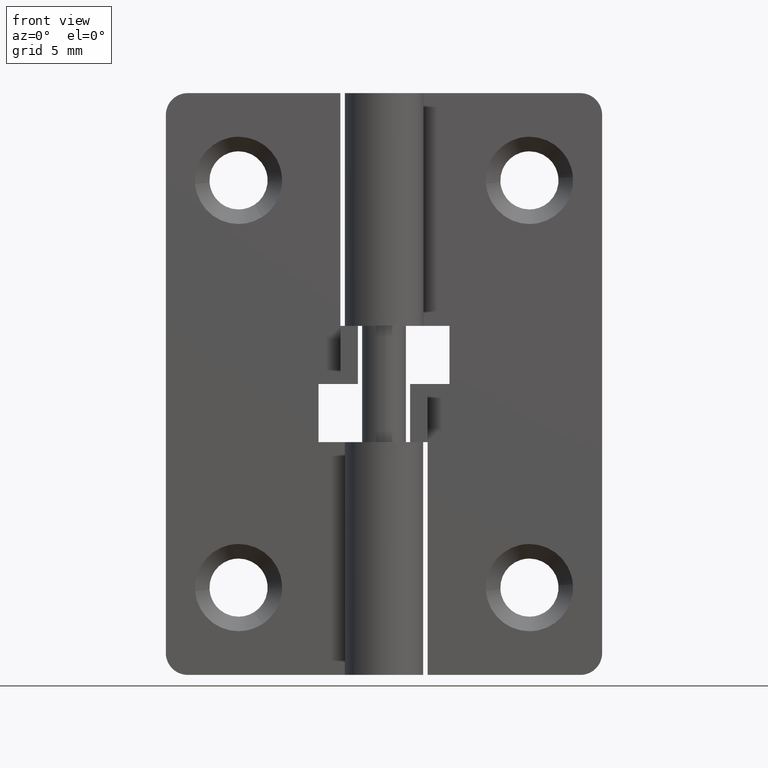
[diagram: clean part render]
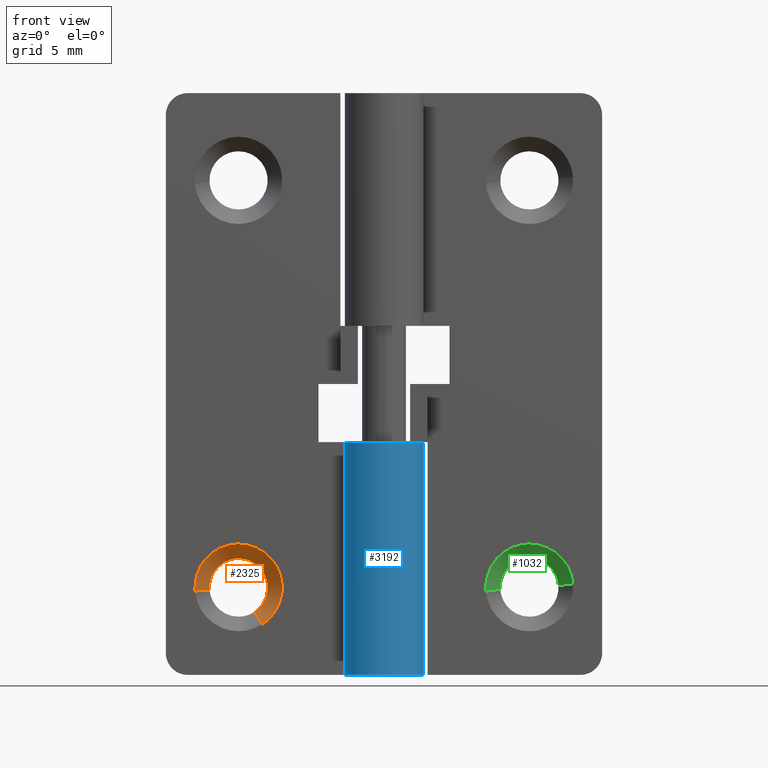
[diagram: same view with three faces highlighted in distinct colors, each labeled with its STEP entity id]
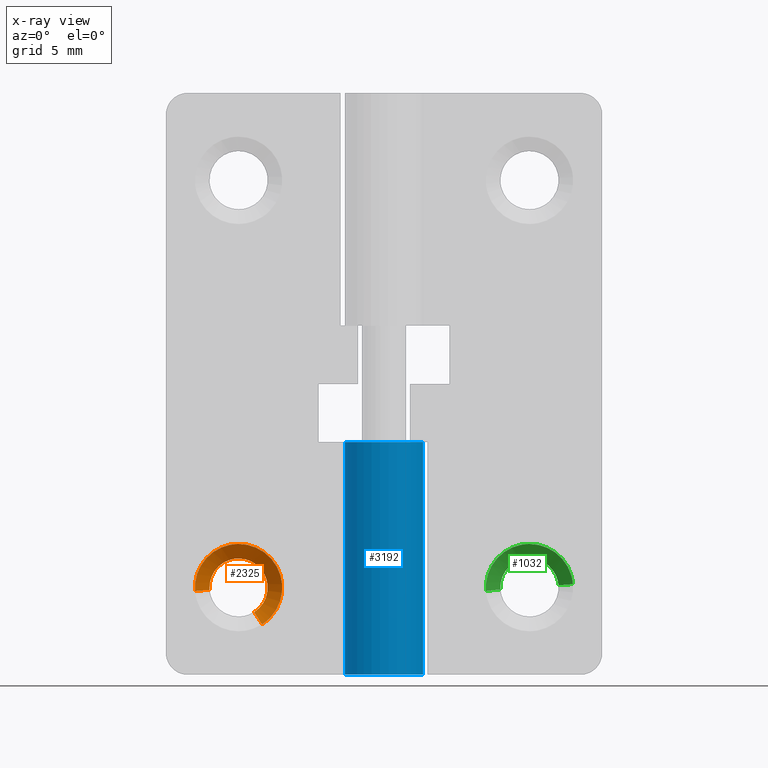
[diagram: x-ray of the same camera — body ghosted, the three highlighted faces saturated]
A machine part, front view with three faces highlighted in distinct colors.
The next image is the same camera in x-ray (body ghosted, the three faces saturated) — at least one of them is partly hidden behind the body in this view.
Their STEP definitions:

[orange] entity #2325 — the highlighted face is a freeform B-spline surface patch.
#2189=CARTESIAN_POINT('',(-8.937736682943745,2.524999999999999,4.334980903492811));
#2190=CARTESIAN_POINT('',(-7.938041795160426,2.525000000000000,4.972775856796218));
#2191=CARTESIAN_POINT('',(-8.031080265877071,2.525000000000000,6.154941714062495));
#2192=CARTESIAN_POINT('',(-8.186036979939566,2.525000000000000,8.123853448185423));
#2193=CARTESIAN_POINT('',(-10.154948714062490,2.525000000000000,7.968896734122928));
#2194=CARTESIAN_POINT('',(-12.123860448185422,2.525000000000000,7.813940020060434));
#2195=CARTESIAN_POINT('',(-11.968903734122931,2.525000000000000,5.845028285937506));
#2196=CARTESIAN_POINT('',(-8.372657193079343,1.474375000000031,3.449261952154678));
#2197=CARTESIAN_POINT('',(-6.841162588092320,1.474375000000031,4.426339600553972));
#2198=CARTESIAN_POINT('',(-6.983693992123735,1.474375000000031,6.237372801511561));
#2199=CARTESIAN_POINT('',(-7.221081793635295,1.474375000000031,9.253670809387824));
#2200=CARTESIAN_POINT('',(-10.237379801511560,1.474375000000031,9.016283007876265));
#2201=CARTESIAN_POINT('',(-13.253677809387824,1.474375000000031,8.778895206364703));
#2202=CARTESIAN_POINT('',(-13.016290007876259,1.474375000000031,5.762597198488440));
#2210=(BOUNDED_SURFACE()B_SPLINE_SURFACE(2,1,((#2189,#2196),(#2190,#2197),(#2191,#2198),(#2192,#2199),(#2193,#2200),(#2194,#2201),(#2195,#2202)),.UNSPECIFIED.,.F.,.F.,.U.)B_SPLINE_SURFACE_WITH_KNOTS((3,2,2,3),(2,2),(0.0,3.408853354261825,8.421872992882157,13.434892631502491),(0.0,1.0),.UNSPECIFIED.)GEOMETRIC_REPRESENTATION_ITEM()RATIONAL_B_SPLINE_SURFACE(((0.872532871172386,0.872532871172386),(0.800832611206852,0.800832611206852),(1.0,1.0),(0.707106781186548,0.707106781186548),(1.0,1.0),(0.707106781186548,0.707106781186548),(1.0,1.0)))REPRESENTATION_ITEM('')SURFACE());
#2211=CARTESIAN_POINT('',(-8.013972947274670,2.500000000000000,6.236053469330372));
#2212=VERTEX_POINT('',#2211);
#2213=CARTESIAN_POINT('',(-8.924290374365508,2.499999964399199,4.313904884759173));
#2214=VERTEX_POINT('',#2213);
#2215=CARTESIAN_POINT('',(-8.013972947274670,2.500000000000000,6.236053469330372));
#2216=CARTESIAN_POINT('',(-7.999991999999999,2.500000000000000,6.118433239320853));
#2217=CARTESIAN_POINT('',(-7.999991999999999,2.500000000000000,5.999985000000001));
#2218=CARTESIAN_POINT('',(-7.999991999999999,2.500000000000000,4.903597718197530));
#2219=CARTESIAN_POINT('',(-8.924290374365508,2.499999964399199,4.313904884759173));
#2227=(BOUNDED_CURVE()B_SPLINE_CURVE(2,(#2215,#2216,#2217,#2218,#2219),.UNSPECIFIED.,.F.,.U.)B_SPLINE_CURVE_WITH_KNOTS((3,2,3),(0.229562473512776,0.250000000000000,0.407950109078772),.UNSPECIFIED.)CURVE()GEOMETRIC_REPRESENTATION_ITEM()RATIONAL_B_SPLINE_CURVE((0.956026754182263,0.976055948330287,1.0,0.814949936559930,0.863729294763002))REPRESENTATION_ITEM(''));
#2228=EDGE_CURVE('',#2212,#2214,#2227,.T.);
#2229=ORIENTED_EDGE('',*,*,#2228,.T.);
#2230=CARTESIAN_POINT('',(-8.386439619589588,1.499999999995708,3.470864853447501));
#2231=VERTEX_POINT('',#2230);
#2232=CARTESIAN_POINT('',(-8.924290374365508,2.499999964399199,4.313904884759173));
#2233=CARTESIAN_POINT('',(-8.386439619589588,1.499999999995708,3.470864853447501));
#2234=QUASI_UNIFORM_CURVE('',1,(#2232,#2233),.UNSPECIFIED.,.F.,.U.);
#2235=EDGE_CURVE('',#2214,#2231,#2234,.T.);
#2236=ORIENTED_EDGE('',*,*,#2235,.T.);
#2237=CARTESIAN_POINT('',(-9.999991999999999,1.500000000000030,8.999985000000001));
#2238=VERTEX_POINT('',#2237);
#2239=CARTESIAN_POINT('',(-9.999991999999999,1.500000000000030,8.999985000000001));
#2240=CARTESIAN_POINT('',(-6.999991999999999,1.500000000000031,8.999985000000001));
#2241=CARTESIAN_POINT('',(-6.999991999999999,1.500000000000030,5.999985000000001));
#2242=CARTESIAN_POINT('',(-6.999991999999999,1.500000000000030,4.355404032063055));
#2243=CARTESIAN_POINT('',(-8.386439619589588,1.499999999995708,3.470864853447502));
#2251=(BOUNDED_CURVE()B_SPLINE_CURVE(2,(#2239,#2240,#2241,#2242,#2243),.UNSPECIFIED.,.F.,.U.)B_SPLINE_CURVE_WITH_KNOTS((3,2,3),(0.0,0.250000000000000,0.407950112619180),.UNSPECIFIED.)CURVE()GEOMETRIC_REPRESENTATION_ITEM()RATIONAL_B_SPLINE_CURVE((1.0,0.707106781186548,1.0,0.814949932412084,0.863729296949754))REPRESENTATION_ITEM(''));
#2252=EDGE_CURVE('',#2238,#2231,#2251,.T.);
#2253=ORIENTED_EDGE('',*,*,#2252,.F.);
#2254=CARTESIAN_POINT('',(-12.990744001211580,1.499999999969424,5.764607712581565));
#2255=VERTEX_POINT('',#2254);
#2256=CARTESIAN_POINT('',(-12.990744001211576,1.499999999969424,5.764607712581565));
#2257=CARTESIAN_POINT('',(-12.999991999999995,1.500000000000030,5.882114678743412));
#2258=CARTESIAN_POINT('',(-12.999992000000001,1.500000000000030,5.999985000000001));
#2259=CARTESIAN_POINT('',(-12.999991999999999,1.500000000000031,8.999985000000001));
#2260=CARTESIAN_POINT('',(-9.999991999999999,1.500000000000030,8.999985000000001));
#2268=(BOUNDED_CURVE()B_SPLINE_CURVE(2,(#2256,#2257,#2258,#2259,#2260),.UNSPECIFIED.,.F.,.U.)B_SPLINE_CURVE_WITH_KNOTS((3,2,3),(0.736331300606114,0.750000000000000,1.0),.UNSPECIFIED.)CURVE()GEOMETRIC_REPRESENTATION_ITEM()RATIONAL_B_SPLINE_CURVE((0.969723356116193,0.983986122550125,1.0,0.707106781186548,1.0))REPRESENTATION_ITEM(''));
#2269=EDGE_CURVE('',#2255,#2238,#2268,.T.);
#2270=ORIENTED_EDGE('',*,*,#2269,.F.);
#2271=CARTESIAN_POINT('',(-11.993826667582891,2.499999999858324,5.843066808220579));
#2272=VERTEX_POINT('',#2271);
#2273=CARTESIAN_POINT('',(-11.993826667582891,2.499999999858324,5.843066808220579));
#2274=CARTESIAN_POINT('',(-12.990744001211580,1.499999999969424,5.764607712581565));
#2275=QUASI_UNIFORM_CURVE('',1,(#2273,#2274),.UNSPECIFIED.,.F.,.U.);
#2276=EDGE_CURVE('',#2272,#2255,#2275,.T.);
#2277=ORIENTED_EDGE('',*,*,#2276,.F.);
#2278=CARTESIAN_POINT('',(-11.996261596837330,2.500000000000000,5.877887920825579));
#2279=VERTEX_POINT('',#2278);
#2280=CARTESIAN_POINT('',(-11.993826667582889,2.499999999858324,5.843066808220579));
#2281=CARTESIAN_POINT('',(-11.995196071749683,2.500000000000000,5.860466739666312));
#2282=CARTESIAN_POINT('',(-11.996261596837329,2.500000000000000,5.877887920825580));
#2290=(BOUNDED_CURVE()B_SPLINE_CURVE(2,(#2280,#2281,#2282),.UNSPECIFIED.,.F.,.U.)B_SPLINE_CURVE_WITH_KNOTS((3,3),(0.736331300579011,0.739332962223868),.UNSPECIFIED.)CURVE()GEOMETRIC_REPRESENTATION_ITEM()RATIONAL_B_SPLINE_CURVE((0.969723356059631,0.972855475488859,0.976072041634409))REPRESENTATION_ITEM(''));
#2291=EDGE_CURVE('',#2272,#2279,#2290,.T.);
#2292=ORIENTED_EDGE('',*,*,#2291,.T.);
#2293=CARTESIAN_POINT('',(-9.999991999999999,2.500000000000000,7.999985000000002));
#2294=VERTEX_POINT('',#2293);
#2295=CARTESIAN_POINT('',(-11.996261596837332,2.500000000000000,5.877887920825579));
#2296=CARTESIAN_POINT('',(-11.999991999999999,2.500000000000000,5.938879473297821));
#2297=CARTESIAN_POINT('',(-11.999992000000001,2.500000000000000,5.999985000000001));
#2298=CARTESIAN_POINT('',(-11.999991999999999,2.500000000000000,7.999985000000002));
#2299=CARTESIAN_POINT('',(-9.999991999999999,2.500000000000000,7.999985000000002));
#2307=(BOUNDED_CURVE()B_SPLINE_CURVE(2,(#2295,#2296,#2297,#2298,#2299),.UNSPECIFIED.,.F.,.U.)B_SPLINE_CURVE_WITH_KNOTS((3,2,3),(0.739332962223867,0.750000000000000,1.0),.UNSPECIFIED.)CURVE()GEOMETRIC_REPRESENTATION_ITEM()RATIONAL_B_SPLINE_CURVE((0.976072041634408,0.987502787882175,1.0,0.707106781186548,1.0))REPRESENTATION_ITEM(''));
#2308=EDGE_CURVE('',#2279,#2294,#2307,.T.);
#2309=ORIENTED_EDGE('',*,*,#2308,.T.);
#2310=CARTESIAN_POINT('',(-9.999991999999999,2.500000000000000,7.999985000000002));
#2311=CARTESIAN_POINT('',(-8.223642948127628,2.500000000000000,7.999985000000002));
#2312=CARTESIAN_POINT('',(-8.013972947274670,2.500000000000000,6.236053469330373));
#2320=(BOUNDED_CURVE()B_SPLINE_CURVE(2,(#2310,#2311,#2312),.UNSPECIFIED.,.F.,.U.)B_SPLINE_CURVE_WITH_KNOTS((3,3),(0.0,0.229562473512776),.UNSPECIFIED.)CURVE()GEOMETRIC_REPRESENTATION_ITEM()RATIONAL_B_SPLINE_CURVE((1.0,0.731050832856261,0.956026754182263))REPRESENTATION_ITEM(''));
#2321=EDGE_CURVE('',#2294,#2212,#2320,.T.);
#2322=ORIENTED_EDGE('',*,*,#2321,.T.);
#2323=EDGE_LOOP('',(#2229,#2236,#2253,#2270,#2277,#2292,#2309,#2322));
#2324=FACE_OUTER_BOUND('',#2323,.T.);
#2325=ADVANCED_FACE('',(#2324),#2210,.F.);

[blue] entity #3192 — the highlighted face is a freeform B-spline surface patch.
#2759=CARTESIAN_POINT('',(-0.004024921239397,2.699997000000000,16.0));
#2760=VERTEX_POINT('',#2759);
#2761=CARTESIAN_POINT('',(0.0,2.699997000000000,16.0));
#2762=VERTEX_POINT('',#2761);
#2763=CARTESIAN_POINT('',(-0.004024921239397,2.699997000000000,16.0));
#2764=CARTESIAN_POINT('',(0.0,2.699997000000000,16.0));
#2765=QUASI_UNIFORM_CURVE('',1,(#2763,#2764),.UNSPECIFIED.,.F.,.U.);
#2766=EDGE_CURVE('',#2760,#2762,#2765,.T.);
#2802=CARTESIAN_POINT('',(-2.277608394786060,1.450000000000024,16.0));
#2803=VERTEX_POINT('',#2802);
#2809=CARTESIAN_POINT('',(0.0,2.699997000000000,16.0));
#2810=CARTESIAN_POINT('',(2.095109977493335,2.699994879182188,16.0));
#2811=CARTESIAN_POINT('',(2.615415091760207,0.670520571077503,16.0));
#2812=CARTESIAN_POINT('',(3.135720206027080,-1.358953737027184,16.0));
#2813=CARTESIAN_POINT('',(1.299038105676649,-2.366961575708929,16.0));
#2814=CARTESIAN_POINT('',(-0.537643994673782,-3.374969414390674,16.0));
#2815=CARTESIAN_POINT('',(-1.970202022019806,-1.846157734330651,16.0));
#2816=CARTESIAN_POINT('',(-3.402760049365829,-0.317346054270630,16.0));
#2817=CARTESIAN_POINT('',(-2.277608394786060,1.450000000000024,16.0));
#2825=(BOUNDED_CURVE()B_SPLINE_CURVE(2,(#2809,#2810,#2811,#2812,#2813,#2814,#2815,#2816,#2817),.UNSPECIFIED.,.F.,.U.)B_SPLINE_CURVE_WITH_KNOTS((3,2,2,2,3),(0.0,0.250000000000000,0.500000000000000,0.750000000000000,1.0),.UNSPECIFIED.)CURVE()GEOMETRIC_REPRESENTATION_ITEM()RATIONAL_B_SPLINE_CURVE((1.0,0.790045133626193,1.0,0.790045133626193,1.0,0.790045133626193,1.0,0.790045133626193,1.0))REPRESENTATION_ITEM(''));
#2826=EDGE_CURVE('',#2762,#2803,#2825,.T.);
#2966=CARTESIAN_POINT('',(-0.004024921239397,2.699997000000000,0.0));
#2967=VERTEX_POINT('',#2966);
#2973=CARTESIAN_POINT('',(-2.277608394786060,1.450000000000020,0.0));
#2974=VERTEX_POINT('',#2973);
#2975=CARTESIAN_POINT('',(-0.004024921239398,2.699997000000003,0.0));
#2976=CARTESIAN_POINT('',(2.091888897325184,2.703121406450932,0.0));
#2977=CARTESIAN_POINT('',(2.614663787370640,0.673448794647837,0.0));
#2978=CARTESIAN_POINT('',(3.137438677416096,-1.356223817155257,0.0));
#2979=CARTESIAN_POINT('',(1.300801972708212,-2.365991172383875,0.0));
#2980=CARTESIAN_POINT('',(-0.535834731999674,-3.375758527612496,0.0));
#2981=CARTESIAN_POINT('',(-1.969513862221105,-1.846893377138731,0.0));
#2982=CARTESIAN_POINT('',(-3.403192992442533,-0.318028226664970,0.0));
#2983=CARTESIAN_POINT('',(-2.277608394786062,1.450000000000020,0.0));
#2991=(BOUNDED_CURVE()B_SPLINE_CURVE(2,(#2975,#2976,#2977,#2978,#2979,#2980,#2981,#2982,#2983),.UNSPECIFIED.,.F.,.U.)B_SPLINE_CURVE_WITH_KNOTS((3,2,2,2,3),(0.0,0.250000000000000,0.500000000000000,0.750000000000000,1.0),.UNSPECIFIED.)CURVE()GEOMETRIC_REPRESENTATION_ITEM()RATIONAL_B_SPLINE_CURVE((1.0,0.789930885023015,1.0,0.789930885023015,1.0,0.789930885023015,1.0,0.789930885023015,1.0))REPRESENTATION_ITEM(''));
#2992=EDGE_CURVE('',#2967,#2974,#2991,.T.);
#3148=CARTESIAN_POINT('',(-2.277608394786060,1.450000000000024,16.0));
#3149=CARTESIAN_POINT('',(-2.277608394786060,1.450000000000020,0.0));
#3150=QUASI_UNIFORM_CURVE('',1,(#3148,#3149),.UNSPECIFIED.,.F.,.U.);
#3151=EDGE_CURVE('',#2803,#2974,#3150,.T.);
#3159=CARTESIAN_POINT('',(-2.227417977394005,1.525978097477811,16.399999999999999));
#3160=CARTESIAN_POINT('',(-2.227417977394005,1.525978097477811,-0.410000000000000));
#3161=CARTESIAN_POINT('',(-4.145835370300159,-1.274270081816019,16.399999999999999));
#3162=CARTESIAN_POINT('',(-4.145835370300159,-1.274270081816019,-0.410000000000000));
#3163=CARTESIAN_POINT('',(-0.985807355221043,-2.513599780870473,16.399999999999999));
#3164=CARTESIAN_POINT('',(-0.985807355221043,-2.513599780870473,-0.410000000000000));
#3165=CARTESIAN_POINT('',(2.174220659858072,-3.752929479924926,16.399999999999999));
#3166=CARTESIAN_POINT('',(2.174220659858072,-3.752929479924926,-0.410000000000000));
#3167=CARTESIAN_POINT('',(2.670934785267827,-0.395104255667167,16.399999999999999));
#3168=CARTESIAN_POINT('',(2.670934785267827,-0.395104255667167,-0.410000000000000));
#3169=CARTESIAN_POINT('',(3.167648910677582,2.962720968590593,16.399999999999999));
#3170=CARTESIAN_POINT('',(3.167648910677582,2.962720968590593,-0.410000000000000));
#3171=CARTESIAN_POINT('',(-0.215851836838363,2.691358018646628,16.399999999999999));
#3172=CARTESIAN_POINT('',(-0.215851836838363,2.691358018646628,-0.410000000000000));
#3180=(BOUNDED_SURFACE()B_SPLINE_SURFACE(1,2,((#3159,#3161,#3163,#3165,#3167,#3169,#3171),(#3160,#3162,#3164,#3166,#3168,#3170,#3172)),.UNSPECIFIED.,.F.,.F.,.U.)B_SPLINE_SURFACE_WITH_KNOTS((2,2),(3,2,2,3),(0.0,16.809999999999999),(0.0,5.209301600829762,10.418603201659520,15.627904802489290),.UNSPECIFIED.)GEOMETRIC_REPRESENTATION_ITEM()RATIONAL_B_SPLINE_SURFACE(((1.0,0.622514636637620,1.0,0.622514636637620,1.0,0.622514636637620,1.0),(1.0,0.622514636637620,1.0,0.622514636637620,1.0,0.622514636637620,1.0)))REPRESENTATION_ITEM('')SURFACE());
#3181=CARTESIAN_POINT('',(-0.004024921239397,2.699997000000000,16.0));
#3182=CARTESIAN_POINT('',(-0.004024921239397,2.699997000000000,0.0));
#3183=QUASI_UNIFORM_CURVE('',1,(#3181,#3182),.UNSPECIFIED.,.F.,.U.);
#3184=EDGE_CURVE('',#2760,#2967,#3183,.T.);
#3185=ORIENTED_EDGE('',*,*,#3184,.F.);
#3186=ORIENTED_EDGE('',*,*,#2766,.T.);
#3187=ORIENTED_EDGE('',*,*,#2826,.T.);
#3188=ORIENTED_EDGE('',*,*,#3151,.T.);
#3189=ORIENTED_EDGE('',*,*,#2992,.F.);
#3190=EDGE_LOOP('',(#3185,#3186,#3187,#3188,#3189));
#3191=FACE_OUTER_BOUND('',#3190,.T.);
#3192=ADVANCED_FACE('',(#3191),#3180,.T.);

[green] entity #1032 — the highlighted face is a freeform B-spline surface patch.
#837=CARTESIAN_POINT('',(8.003730392787135,2.499999999999739,5.877896090464112));
#838=VERTEX_POINT('',#837);
#882=CARTESIAN_POINT('',(11.993834667483990,2.499999999955608,6.156911191796178));
#883=VERTEX_POINT('',#882);
#899=CARTESIAN_POINT('',(10.0,2.500000000000000,7.999992999999790));
#900=VERTEX_POINT('',#899);
#901=CARTESIAN_POINT('',(10.0,2.500000000000000,7.999992999999790));
#902=CARTESIAN_POINT('',(11.848780982689119,2.500000000000000,7.999992999999791));
#903=CARTESIAN_POINT('',(11.993834667483991,2.499999999955608,6.156911191796179));
#911=(BOUNDED_CURVE()B_SPLINE_CURVE(2,(#901,#902,#903),.UNSPECIFIED.,.F.,.U.)B_SPLINE_CURVE_WITH_KNOTS((3,3),(0.0,0.236331300574781),.UNSPECIFIED.)CURVE()GEOMETRIC_REPRESENTATION_ITEM()RATIONAL_B_SPLINE_CURVE((1.0,0.723120658673131,0.969723356050804))REPRESENTATION_ITEM(''));
#912=EDGE_CURVE('',#900,#883,#911,.T.);
#914=CARTESIAN_POINT('',(8.003730392787135,2.499999999999739,5.877896090464112));
#915=CARTESIAN_POINT('',(8.0,2.500000000000000,5.938887558407308));
#916=CARTESIAN_POINT('',(8.0,2.500000000000000,5.999992999999790));
#917=CARTESIAN_POINT('',(8.0,2.500000000000000,7.999992999999791));
#918=CARTESIAN_POINT('',(10.0,2.500000000000000,7.999992999999790));
#926=(BOUNDED_CURVE()B_SPLINE_CURVE(2,(#914,#915,#916,#917,#918),.UNSPECIFIED.,.F.,.U.)B_SPLINE_CURVE_WITH_KNOTS((3,2,3),(0.739332976895577,0.750000000000000,1.0),.UNSPECIFIED.)CURVE()GEOMETRIC_REPRESENTATION_ITEM()RATIONAL_B_SPLINE_CURVE((0.976072073078677,0.987502805071153,1.0,0.707106781186548,1.0))REPRESENTATION_ITEM(''));
#927=EDGE_CURVE('',#838,#900,#926,.T.);
#966=CARTESIAN_POINT('',(11.968911734122960,2.525000000000000,6.154949714062288));
#967=CARTESIAN_POINT('',(11.813955020060460,2.525000000000000,8.123861448185245));
#968=CARTESIAN_POINT('',(9.845043285937503,2.525000000000000,7.968904734122747));
#969=CARTESIAN_POINT('',(7.876131551814546,2.525000000000000,7.813948020060249));
#970=CARTESIAN_POINT('',(8.031088265877044,2.525000000000000,5.845036285937293));
#971=CARTESIAN_POINT('',(13.016298007876291,1.474375000000031,6.237380801511353));
#972=CARTESIAN_POINT('',(12.778910206364731,1.474375000000031,9.253678809387647));
#973=CARTESIAN_POINT('',(9.762612198488437,1.474375000000031,9.016291007876085));
#974=CARTESIAN_POINT('',(6.746314190612144,1.474375000000031,8.778903206364522));
#975=CARTESIAN_POINT('',(6.983701992123707,1.474375000000031,5.762605198488227));
#983=(BOUNDED_SURFACE()B_SPLINE_SURFACE(2,1,((#966,#971),(#967,#972),(#968,#973),(#969,#974),(#970,#975)),.UNSPECIFIED.,.F.,.F.,.U.)B_SPLINE_SURFACE_WITH_KNOTS((3,2,3),(2,2),(0.0,5.013019638620381,10.026039277240759),(0.0,1.0),.UNSPECIFIED.)GEOMETRIC_REPRESENTATION_ITEM()RATIONAL_B_SPLINE_SURFACE(((1.0,1.0),(0.707106781186548,0.707106781186548),(1.0,1.0),(0.707106781186548,0.707106781186548),(1.0,1.0)))REPRESENTATION_ITEM('')SURFACE());
#984=ORIENTED_EDGE('',*,*,#912,.T.);
#985=CARTESIAN_POINT('',(12.990752001211590,1.499999999969431,6.235370287418227));
#986=VERTEX_POINT('',#985);
#987=CARTESIAN_POINT('',(11.993834667483990,2.499999999955608,6.156911191796178));
#988=CARTESIAN_POINT('',(12.990752001211590,1.499999999969431,6.235370287418227));
#989=QUASI_UNIFORM_CURVE('',1,(#987,#988),.UNSPECIFIED.,.F.,.U.);
#990=EDGE_CURVE('',#883,#986,#989,.T.);
#991=ORIENTED_EDGE('',*,*,#990,.T.);
#992=CARTESIAN_POINT('',(10.0,1.500000000000030,8.999992999999790));
#993=VERTEX_POINT('',#992);
#994=CARTESIAN_POINT('',(10.0,1.500000000000030,8.999992999999790));
#995=CARTESIAN_POINT('',(12.773171474542121,1.500000000000030,8.999992999999790));
#996=CARTESIAN_POINT('',(12.990752001211588,1.499999999969431,6.235370287418227));
#1004=(BOUNDED_CURVE()B_SPLINE_CURVE(2,(#994,#995,#996),.UNSPECIFIED.,.F.,.U.)B_SPLINE_CURVE_WITH_KNOTS((3,3),(0.0,0.236331300606114),.UNSPECIFIED.)CURVE()GEOMETRIC_REPRESENTATION_ITEM()RATIONAL_B_SPLINE_CURVE((1.0,0.723120658636423,0.969723356116193))REPRESENTATION_ITEM(''));
#1005=EDGE_CURVE('',#993,#986,#1004,.T.);
#1006=ORIENTED_EDGE('',*,*,#1005,.F.);
#1007=CARTESIAN_POINT('',(7.009247998788410,1.499999999969432,5.764615712581353));
#1008=VERTEX_POINT('',#1007);
#1009=CARTESIAN_POINT('',(7.009247998788410,1.499999999969432,5.764615712581353));
#1010=CARTESIAN_POINT('',(6.999999999999999,1.500000000000030,5.882122678743202));
#1011=CARTESIAN_POINT('',(7.0,1.500000000000030,5.999992999999790));
#1012=CARTESIAN_POINT('',(6.999999999999999,1.500000000000031,8.999992999999790));
#1013=CARTESIAN_POINT('',(10.0,1.500000000000030,8.999992999999790));
#1021=(BOUNDED_CURVE()B_SPLINE_CURVE(2,(#1009,#1010,#1011,#1012,#1013),.UNSPECIFIED.,.F.,.U.)B_SPLINE_CURVE_WITH_KNOTS((3,2,3),(0.736331300606114,0.750000000000000,1.0),.UNSPECIFIED.)CURVE()GEOMETRIC_REPRESENTATION_ITEM()RATIONAL_B_SPLINE_CURVE((0.969723356116193,0.983986122550125,1.0,0.707106781186548,1.0))REPRESENTATION_ITEM(''));
#1022=EDGE_CURVE('',#1008,#993,#1021,.T.);
#1023=ORIENTED_EDGE('',*,*,#1022,.F.);
#1024=CARTESIAN_POINT('',(8.003730392787135,2.499999999999739,5.877896090464112));
#1025=CARTESIAN_POINT('',(7.009247998788410,1.499999999969432,5.764615712581353));
#1026=QUASI_UNIFORM_CURVE('',1,(#1024,#1025),.UNSPECIFIED.,.F.,.U.);
#1027=EDGE_CURVE('',#838,#1008,#1026,.T.);
#1028=ORIENTED_EDGE('',*,*,#1027,.F.);
#1029=ORIENTED_EDGE('',*,*,#927,.T.);
#1030=EDGE_LOOP('',(#984,#991,#1006,#1023,#1028,#1029));
#1031=FACE_OUTER_BOUND('',#1030,.T.);
#1032=ADVANCED_FACE('',(#1031),#983,.F.);